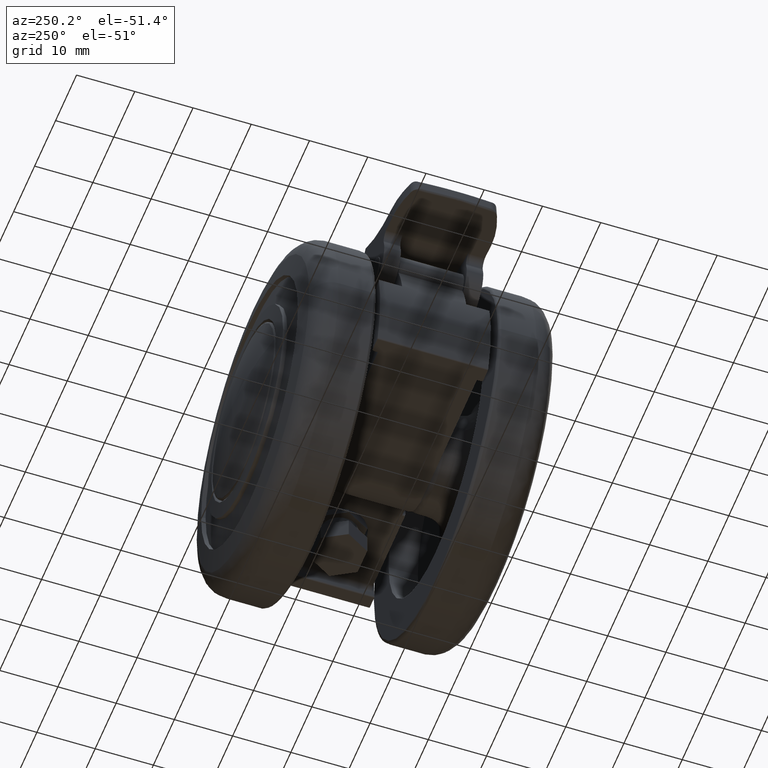
[diagram: clean part render]
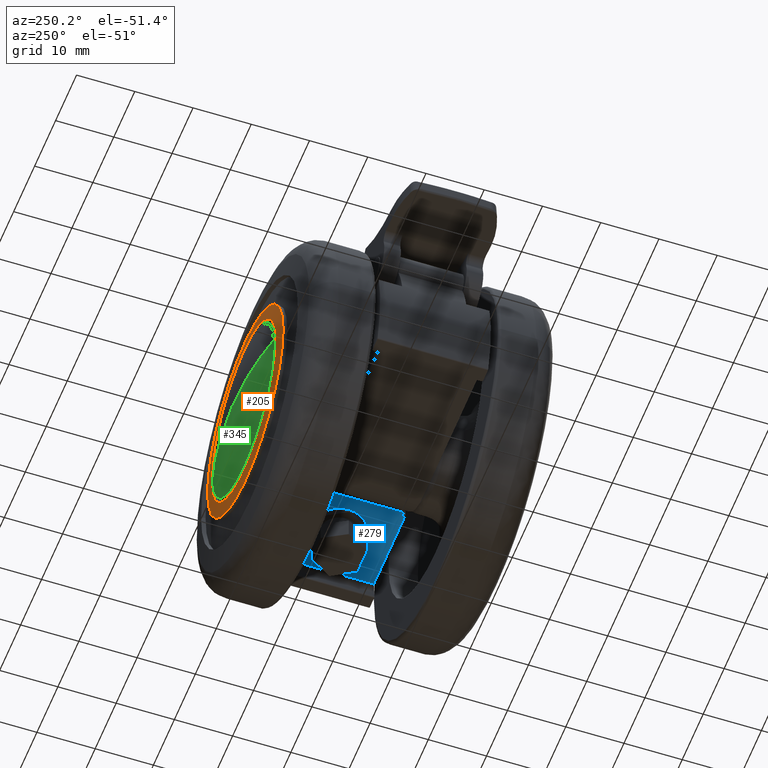
[diagram: same view with three faces highlighted in distinct colors, each labeled with its STEP entity id]
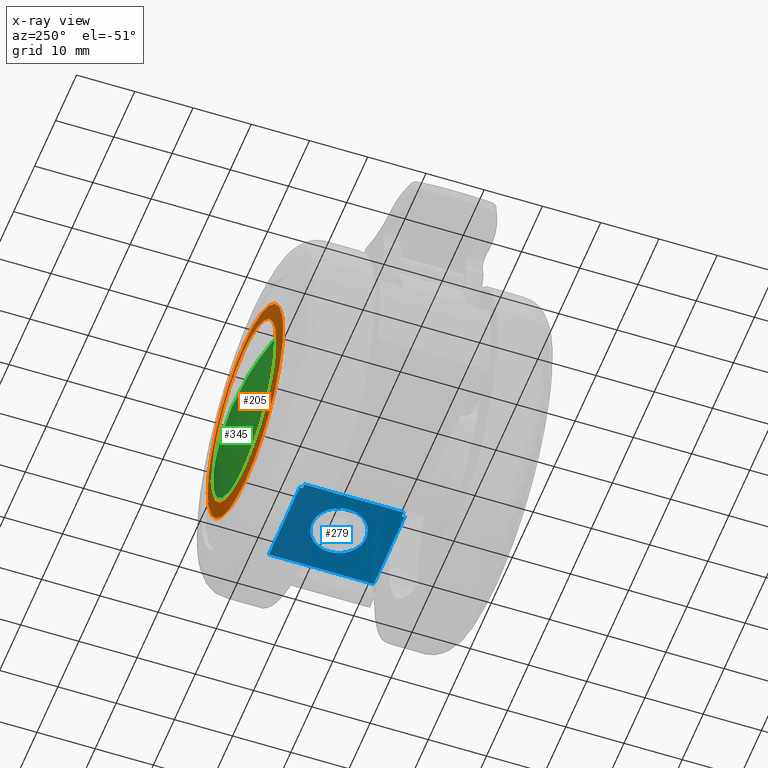
[diagram: x-ray of the same camera — body ghosted, the three highlighted faces saturated]
A machine part, auxiliary view with three faces highlighted in distinct colors.
The next image is the same camera in x-ray (body ghosted, the three faces saturated) — at least one of them is partly hidden behind the body in this view.
Their STEP definitions:

[orange] entity #205 — the highlighted spherical surface has radius 150 mm.
#205=ADVANCED_FACE('',(#523,#524),#522,.T.);
#522=SPHERICAL_SURFACE('',#3107,1.50000000000E+02);
#523=FACE_OUTER_BOUND('',#3108,.T.);
#524=FACE_BOUND('',#3109,.T.);
#3104=CARTESIAN_POINT('',(0.00000000000E+00,0.00000000000E+00,-1.35210000000E+02));
#3105=DIRECTION('',(-1.00000000000E+00,0.00000000000E+00,0.00000000000E+00));
#3106=DIRECTION('',(-0.00000000000E+00,-1.20000000000E-01,9.92773891679E-01));
#3107=AXIS2_PLACEMENT_3D('',#3104,#3105,#3106);
#3108=EDGE_LOOP('',(#5837,#5838));
#3109=EDGE_LOOP('',(#5839,#5840,#5841));
#5837=ORIENTED_EDGE('',*,*,#6978,.T.);
#5838=ORIENTED_EDGE('',*,*,#6979,.T.);
#5839=ORIENTED_EDGE('',*,*,#6980,.T.);
#5840=ORIENTED_EDGE('',*,*,#6981,.T.);
#5841=ORIENTED_EDGE('',*,*,#6982,.T.);
#6978=EDGE_CURVE('',#7800,#7801,#7802,.T.);
#6979=EDGE_CURVE('',#7801,#7800,#7808,.T.);
#6980=EDGE_CURVE('',#7814,#7815,#7816,.T.);
#6981=EDGE_CURVE('',#7815,#7822,#7823,.T.);
#6982=EDGE_CURVE('',#7822,#7814,#7829,.T.);
#7800=VERTEX_POINT('',#11533);
#7801=VERTEX_POINT('',#11534);
#7802=CIRCLE('',#11538,1.80000000000E+01);
#7808=CIRCLE('',#11542,1.80000000000E+01);
#7814=VERTEX_POINT('',#11543);
#7815=VERTEX_POINT('',#11544);
#7816=CIRCLE('',#11548,1.54308617234E+01);
#7822=VERTEX_POINT('',#11549);
#7823=CIRCLE('',#11553,1.54308617234E+01);
#7829=CIRCLE('',#11557,1.54308617234E+01);
#11533=CARTESIAN_POINT('',(1.80000000000E+01,-4.40865567535E-15,1.37060837519E+01));
#11534=CARTESIAN_POINT('',(-1.80000000000E+01,1.18423789293E-15,1.37060837519E+01));
#11535=CARTESIAN_POINT('',(0.00000000000E+00,0.00000000000E+00,1.37060837519E+01));
#11536=DIRECTION('',(0.00000000000E+00,0.00000000000E+00,1.00000000000E+00));
#11537=DIRECTION('',(1.00000000000E+00,-1.22464679915E-16,-0.00000000000E+00));
#11538=AXIS2_PLACEMENT_3D('',#11535,#11536,#11537);
#11539=CARTESIAN_POINT('',(0.00000000000E+00,0.00000000000E+00,1.37060837519E+01));
#11540=DIRECTION('',(0.00000000000E+00,0.00000000000E+00,1.00000000000E+00));
#11541=DIRECTION('',(1.00000000000E+00,-1.22464679915E-16,-0.00000000000E+00));
#11542=AXIS2_PLACEMENT_3D('',#11539,#11540,#11541);
#11543=CARTESIAN_POINT('',(1.88967313115E-15,-1.54308617234E+01,1.39941839443E+01));
#11544=CARTESIAN_POINT('',(-1.54308616403E+01,1.60142647471E-03,1.39941839443E+01));
#11545=CARTESIAN_POINT('',(0.00000000000E+00,0.00000000000E+00,1.39941839443E+01));
#11546=DIRECTION('',(0.00000000000E+00,0.00000000000E+00,-1.00000000000E+00));
#11547=DIRECTION('',(-0.00000000000E+00,-1.00000000000E+00,-0.00000000000E+00));
#11548=AXIS2_PLACEMENT_3D('',#11545,#11546,#11547);
#11549=CARTESIAN_POINT('',(1.54308617234E+01,-5.40735557049E-10,1.39941839443E+01));
#11550=CARTESIAN_POINT('',(0.00000000000E+00,0.00000000000E+00,1.39941839443E+01));
#11551=DIRECTION('',(0.00000000000E+00,0.00000000000E+00,-1.00000000000E+00));
#11552=DIRECTION('',(-0.00000000000E+00,-1.00000000000E+00,-0.00000000000E+00));
#11553=AXIS2_PLACEMENT_3D('',#11550,#11551,#11552);
#11554=CARTESIAN_POINT('',(0.00000000000E+00,0.00000000000E+00,1.39941839443E+01));
#11555=DIRECTION('',(0.00000000000E+00,0.00000000000E+00,-1.00000000000E+00));
#11556=DIRECTION('',(-0.00000000000E+00,-1.00000000000E+00,-0.00000000000E+00));
#11557=AXIS2_PLACEMENT_3D('',#11554,#11555,#11556);

[blue] entity #279 — the highlighted planar face has unit normal (0, 0, 1).
#279=ADVANCED_FACE('',(#1268,#1269),#1267,.F.);
#1267=PLANE('',#4069);
#1268=FACE_OUTER_BOUND('',#4070,.T.);
#1269=FACE_BOUND('',#4071,.T.);
#4066=CARTESIAN_POINT('',(2.70133149300E+01,1.08000000000E+01,-1.50000000000E+00));
#4067=DIRECTION('',(0.00000000000E+00,0.00000000000E+00,1.00000000000E+00));
#4068=DIRECTION('',(-1.00000000000E+00,0.00000000000E+00,0.00000000000E+00));
#4069=AXIS2_PLACEMENT_3D('',#4066,#4067,#4068);
#4070=EDGE_LOOP('',(#6199,#6200,#6201,#6202,#6203,#6204,#6205,#6206));
#4071=EDGE_LOOP('',(#6207,#6208));
#6199=ORIENTED_EDGE('',*,*,#7155,.T.);
#6200=ORIENTED_EDGE('',*,*,#7156,.F.);
#6201=ORIENTED_EDGE('',*,*,#7157,.T.);
#6202=ORIENTED_EDGE('',*,*,#7158,.F.);
#6203=ORIENTED_EDGE('',*,*,#7159,.T.);
#6204=ORIENTED_EDGE('',*,*,#7160,.F.);
#6205=ORIENTED_EDGE('',*,*,#7161,.T.);
#6206=ORIENTED_EDGE('',*,*,#7162,.F.);
#6207=ORIENTED_EDGE('',*,*,#7163,.F.);
#6208=ORIENTED_EDGE('',*,*,#7164,.F.);
#7155=EDGE_CURVE('',#8972,#8973,#8974,.T.);
#7156=EDGE_CURVE('',#8980,#8973,#8981,.T.);
#7157=EDGE_CURVE('',#8980,#8987,#8988,.T.);
#7158=EDGE_CURVE('',#8994,#8987,#8995,.T.);
#7159=EDGE_CURVE('',#8994,#9001,#9002,.T.);
#7160=EDGE_CURVE('',#9008,#9001,#9009,.T.);
#7161=EDGE_CURVE('',#9008,#9015,#9016,.T.);
#7162=EDGE_CURVE('',#8972,#9015,#9022,.T.);
#7163=EDGE_CURVE('',#9028,#9029,#9030,.T.);
#7164=EDGE_CURVE('',#9029,#9028,#9036,.T.);
#8972=VERTEX_POINT('',#12445);
#8973=VERTEX_POINT('',#12446);
#8974=LINE('',#12447,#12448);
#8980=VERTEX_POINT('',#12450);
#8981=LINE('',#12451,#12452);
#8987=VERTEX_POINT('',#12454);
#8988=LINE('',#12455,#12456);
#8994=VERTEX_POINT('',#12458);
#8995=LINE('',#12459,#12460);
#9001=VERTEX_POINT('',#12462);
#9002=LINE('',#12463,#12464);
#9008=VERTEX_POINT('',#12466);
#9009=LINE('',#12467,#12468);
#9015=VERTEX_POINT('',#12470);
#9016=LINE('',#12471,#12472);
#9022=LINE('',#12474,#12475);
#9028=VERTEX_POINT('',#12477);
#9029=VERTEX_POINT('',#12478);
#9030=CIRCLE('',#12482,4.65000000000E+00);
#9036=CIRCLE('',#12486,4.65000000000E+00);
#12445=CARTESIAN_POINT('',(9.89949493661E+00,-8.50000000000E+00,-1.50000000000E+00));
#12446=CARTESIAN_POINT('',(9.89949493661E+00,8.50000000000E+00,-1.50000000000E+00));
#12447=CARTESIAN_POINT('',(9.89949493661E+00,-8.50000000000E+00,-1.50000000000E+00));
#12448=VECTOR('',#12449,1.70000000000E+01);
#12449=DIRECTION('',(0.00000000000E+00,1.00000000000E+00,0.00000000000E+00));
#12450=CARTESIAN_POINT('',(1.07331262920E+01,8.50000000000E+00,-1.50000000000E+00));
#12451=CARTESIAN_POINT('',(1.07331262920E+01,8.50000000000E+00,-1.50000000000E+00));
#12452=VECTOR('',#12453,8.33631355387E-01);
#12453=DIRECTION('',(-1.00000000000E+00,0.00000000000E+00,0.00000000000E+00));
#12454=CARTESIAN_POINT('',(1.07331262920E+01,9.00000000000E+00,-1.50000000000E+00));
#12455=CARTESIAN_POINT('',(1.07331262920E+01,8.50000000000E+00,-1.50000000000E+00));
#12456=VECTOR('',#12457,5.00000000000E-01);
#12457=DIRECTION('',(0.00000000000E+00,1.00000000000E+00,0.00000000000E+00));
#12458=CARTESIAN_POINT('',(2.54575131125E+01,9.00000000000E+00,-1.50000000000E+00));
#12459=CARTESIAN_POINT('',(2.54575131125E+01,9.00000000000E+00,-1.50000000000E+00));
#12460=VECTOR('',#12461,1.47243868205E+01);
#12461=DIRECTION('',(-1.00000000000E+00,0.00000000000E+00,0.00000000000E+00));
#12462=CARTESIAN_POINT('',(2.54575131125E+01,-9.00000000000E+00,-1.50000000000E+00));
#12463=CARTESIAN_POINT('',(2.54575131125E+01,9.00000000000E+00,-1.50000000000E+00));
#12464=VECTOR('',#12465,1.80000000000E+01);
#12465=DIRECTION('',(-1.97372982156E-16,-1.00000000000E+00,0.00000000000E+00));
#12466=CARTESIAN_POINT('',(1.07331262920E+01,-9.00000000000E+00,-1.50000000000E+00));
#12467=CARTESIAN_POINT('',(1.07331262920E+01,-9.00000000000E+00,-1.50000000000E+00));
#12468=VECTOR('',#12469,1.47243868205E+01);
#12469=DIRECTION('',(1.00000000000E+00,0.00000000000E+00,0.00000000000E+00));
#12470=CARTESIAN_POINT('',(1.07331262920E+01,-8.50000000000E+00,-1.50000000000E+00));
#12471=CARTESIAN_POINT('',(1.07331262920E+01,-9.00000000000E+00,-1.50000000000E+00));
#12472=VECTOR('',#12473,5.00000000000E-01);
#12473=DIRECTION('',(-3.55271367880E-15,1.00000000000E+00,0.00000000000E+00));
#12474=CARTESIAN_POINT('',(9.89949493661E+00,-8.50000000000E+00,-1.50000000000E+00));
#12475=VECTOR('',#12476,8.33631355387E-01);
#12476=DIRECTION('',(1.00000000000E+00,0.00000000000E+00,0.00000000000E+00));
#12477=CARTESIAN_POINT('',(1.23500000000E+01,-2.96059473233E-14,-1.50000000000E+00));
#12478=CARTESIAN_POINT('',(2.16500000000E+01,-2.85386886640E-14,-1.50000000000E+00));
#12479=CARTESIAN_POINT('',(1.70000000000E+01,-2.96775913801E-14,-1.50000000000E+00));
#12480=DIRECTION('',(-0.00000000000E+00,0.00000000000E+00,-1.00000000000E+00));
#12481=DIRECTION('',(1.00000000000E+00,1.22464679915E-16,-0.00000000000E+00));
#12482=AXIS2_PLACEMENT_3D('',#12479,#12480,#12481);
#12483=CARTESIAN_POINT('',(1.70000000000E+01,-2.96775913801E-14,-1.50000000000E+00));
#12484=DIRECTION('',(-0.00000000000E+00,0.00000000000E+00,-1.00000000000E+00));
#12485=DIRECTION('',(1.00000000000E+00,1.22464679915E-16,-0.00000000000E+00));
#12486=AXIS2_PLACEMENT_3D('',#12483,#12484,#12485);

[green] entity #345 — the highlighted spherical surface has radius 55 mm.
#345=ADVANCED_FACE('',(#1936),#1935,.T.);
#1935=SPHERICAL_SURFACE('',#5223,5.50000000000E+01);
#1936=FACE_OUTER_BOUND('',#5224,.T.);
#5220=CARTESIAN_POINT('',(-0.00000000000E+00,-3.04300000000E+01,0.00000000000E+00));
#5221=DIRECTION('',(-0.00000000000E+00,-1.00000000000E+00,-0.00000000000E+00));
#5222=DIRECTION('',(-9.97394829161E-01,0.00000000000E+00,7.21356691384E-02));
#5223=AXIS2_PLACEMENT_3D('',#5220,#5221,#5222);
#5224=EDGE_LOOP('',(#6580,#6581,#6582,#6583));
#6580=ORIENTED_EDGE('',*,*,#7339,.T.);
#6581=ORIENTED_EDGE('',*,*,#7341,.F.);
#6582=ORIENTED_EDGE('',*,*,#7342,.F.);
#6583=ORIENTED_EDGE('',*,*,#7340,.F.);
#7339=EDGE_CURVE('',#10198,#10191,#10199,.T.);
#7340=EDGE_CURVE('',#10198,#10184,#10205,.T.);
#7341=EDGE_CURVE('',#10211,#10191,#10212,.T.);
#7342=EDGE_CURVE('',#10184,#10211,#10218,.T.);
#10184=VERTEX_POINT('',#13523);
#10191=VERTEX_POINT('',#13528);
#10198=VERTEX_POINT('',#13533);
#10199=(BOUNDED_CURVE() B_SPLINE_CURVE(2,(#13534,#13535,#13536),.UNSPECIFIED.,.F.,.F.) B_SPLINE_CURVE_WITH_KNOTS((3,3),(0.00000000000E+00,1.00000000000E+00),.UNSPECIFIED.) CURVE() GEOMETRIC_REPRESENTATION_ITEM() RATIONAL_B_SPLINE_CURVE((1.00000000000E+00,9.90824837049E-01,1.00000000000E+00)) REPRESENTATION_ITEM('') );
#10205=(BOUNDED_CURVE() B_SPLINE_CURVE(2,(#13537,#13538,#13539),.UNSPECIFIED.,.F.,.F.) B_SPLINE_CURVE_WITH_KNOTS((3,3),(0.00000000000E+00,1.00000000000E+00),.UNSPECIFIED.) CURVE() GEOMETRIC_REPRESENTATION_ITEM() RATIONAL_B_SPLINE_CURVE((7.50000000000E-01,7.43118627787E-01,7.50000000000E-01)) REPRESENTATION_ITEM('') );
#10211=VERTEX_POINT('',#13540);
#10212=CIRCLE('',#13544,1.47303473492E+01);
#10218=CIRCLE('',#13548,1.47303473492E+01);
#13523=CARTESIAN_POINT('',(-1.46919537609E+01,2.25607243484E+01,1.06283945887E+00));
#13528=CARTESIAN_POINT('',(1.46919722744E+01,2.25607243484E+01,-1.06258351025E+00));
#13533=CARTESIAN_POINT('',(3.35889412392E-15,2.45700000000E+01,-2.42928946601E-16));
#13534=CARTESIAN_POINT('',(3.35889412392E-15,2.45700000000E+01,-2.42928946601E-16));
#13535=CARTESIAN_POINT('',(7.48266557295E+00,2.45700000000E+01,-5.41176946443E-01));
#13536=CARTESIAN_POINT('',(1.46919722778E+01,2.25607243484E+01,-1.06258346267E+00));
#13537=CARTESIAN_POINT('',(-3.35889412392E-15,2.45700000000E+01,2.42928946601E-16));
#13538=CARTESIAN_POINT('',(-7.48266557295E+00,2.45700000000E+01,5.41176946443E-01));
#13539=CARTESIAN_POINT('',(-1.46919722778E+01,2.25607243484E+01,1.06258346267E+00));
#13540=CARTESIAN_POINT('',(0.00000000000E+00,2.25607243484E+01,-1.47303473492E+01));
#13541=CARTESIAN_POINT('',(0.00000000000E+00,2.25607243484E+01,0.00000000000E+00));
#13542=DIRECTION('',(0.00000000000E+00,-1.00000000000E+00,-0.00000000000E+00));
#13543=DIRECTION('',(-1.22460635382E-16,0.00000000000E+00,-1.00000000000E+00));
#13544=AXIS2_PLACEMENT_3D('',#13541,#13542,#13543);
#13545=CARTESIAN_POINT('',(0.00000000000E+00,2.25607243484E+01,0.00000000000E+00));
#13546=DIRECTION('',(0.00000000000E+00,-1.00000000000E+00,-0.00000000000E+00));
#13547=DIRECTION('',(-1.22460635382E-16,0.00000000000E+00,-1.00000000000E+00));
#13548=AXIS2_PLACEMENT_3D('',#13545,#13546,#13547);